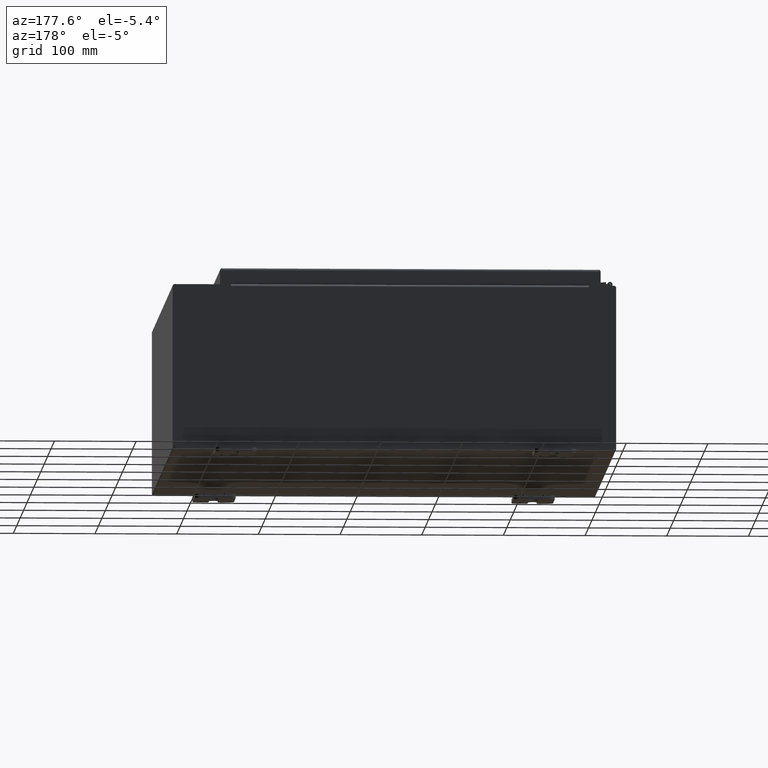
[diagram: clean part render]
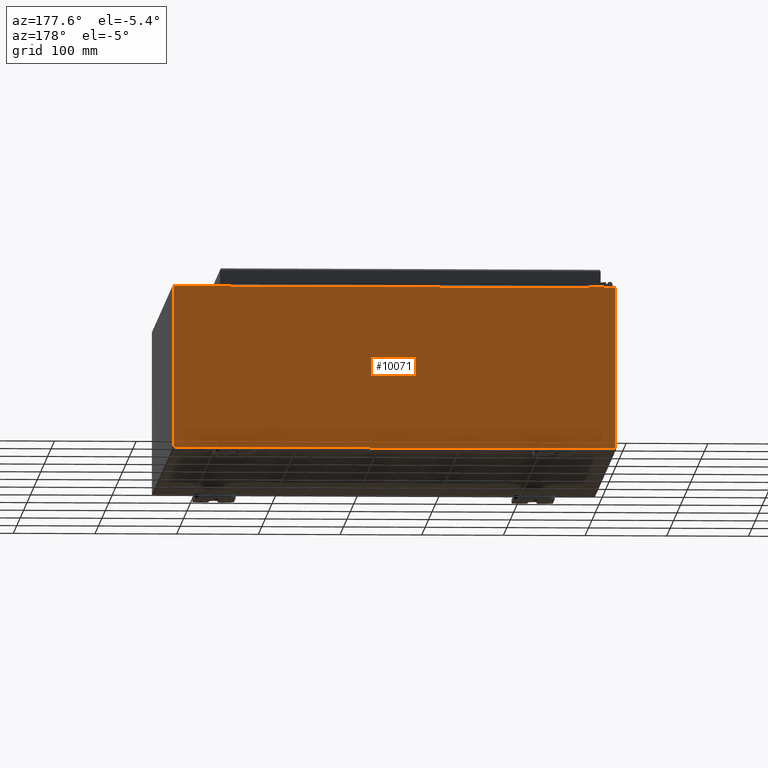
[diagram: same view with one face highlighted and labeled with its STEP entity id]
A machine part, auxiliary view. The second image highlights one B-rep face of the part: STEP entity #10071.
In plain terms, the highlighted planar face has unit normal (0, -1, 0).
Its self-contained STEP definition (entity closure, byte-faithful):
#456=CIRCLE($,#10759,0.07);
#457=CIRCLE($,#10762,0.07);
#1059=FACE_OUTER_BOUND($,#1633,.T.);
#1633=EDGE_LOOP($,(#7197,#7198,#7199,#7200,#7201,#7202,#7203,#7204,#7205,
#7206,#7207,#7208,#7209,#7210));
#2177=LINE($,#14623,#3142);
#2189=LINE($,#14660,#3154);
#2336=LINE($,#14991,#3301);
#2339=LINE($,#14999,#3304);
#2342=LINE($,#15003,#3307);
#2344=LINE($,#15008,#3309);
#2347=LINE($,#15014,#3312);
#2351=LINE($,#15021,#3316);
#2352=LINE($,#15024,#3317);
#2409=LINE($,#15431,#3374);
#2410=LINE($,#15433,#3375);
#2411=LINE($,#15436,#3376);
#3142=VECTOR($,#11818,0.000199999999999981);
#3154=VECTOR($,#11844,0.000199999999999981);
#3301=VECTOR($,#12163,17.253);
#3304=VECTOR($,#12168,0.0314500000000107);
#3307=VECTOR($,#12173,0.00020000000000138);
#3309=VECTOR($,#12177,0.000199999999999981);
#3312=VECTOR($,#12182,0.0314500000000107);
#3316=VECTOR($,#12188,2.7763);
#3317=VECTOR($,#12191,1.2763);
#3374=VECTOR($,#12332,7.79854986440824);
#3375=VECTOR($,#12333,21.1455336786487);
#3376=VECTOR($,#12336,7.79854986440823);
#4154=VERTEX_POINT($,#14620);
#4155=VERTEX_POINT($,#14622);
#4172=VERTEX_POINT($,#14657);
#4173=VERTEX_POINT($,#14659);
#4274=VERTEX_POINT($,#14996);
#4275=VERTEX_POINT($,#14998);
#4277=VERTEX_POINT($,#15007);
#4279=VERTEX_POINT($,#15013);
#4281=VERTEX_POINT($,#15019);
#4282=VERTEX_POINT($,#15023);
#4331=VERTEX_POINT($,#15405);
#4332=VERTEX_POINT($,#15407);
#4335=VERTEX_POINT($,#15432);
#4336=VERTEX_POINT($,#15434);
#5124=EDGE_CURVE($,#4155,#4154,#2177,.T.);
#5142=EDGE_CURVE($,#4173,#4172,#2189,.T.);
#5308=EDGE_CURVE($,#4154,#4173,#2336,.T.);
#5311=EDGE_CURVE($,#4275,#4274,#2339,.T.);
#5314=EDGE_CURVE($,#4172,#4275,#2342,.T.);
#5316=EDGE_CURVE($,#4277,#4155,#2344,.T.);
#5319=EDGE_CURVE($,#4279,#4277,#2347,.T.);
#5323=EDGE_CURVE($,#4281,#4274,#2351,.T.);
#5324=EDGE_CURVE($,#4279,#4282,#2352,.T.);
#5405=EDGE_CURVE($,#4332,#4331,#456,.T.);
#5410=EDGE_CURVE($,#4332,#4281,#2409,.T.);
#5411=EDGE_CURVE($,#4331,#4335,#2410,.T.);
#5412=EDGE_CURVE($,#4335,#4336,#457,.T.);
#5413=EDGE_CURVE($,#4282,#4336,#2411,.T.);
#7197=ORIENTED_EDGE($,*,*,#5311,.T.);
#7198=ORIENTED_EDGE($,*,*,#5323,.F.);
#7199=ORIENTED_EDGE($,*,*,#5410,.F.);
#7200=ORIENTED_EDGE($,*,*,#5405,.T.);
#7201=ORIENTED_EDGE($,*,*,#5411,.T.);
#7202=ORIENTED_EDGE($,*,*,#5412,.T.);
#7203=ORIENTED_EDGE($,*,*,#5413,.F.);
#7204=ORIENTED_EDGE($,*,*,#5324,.F.);
#7205=ORIENTED_EDGE($,*,*,#5319,.T.);
#7206=ORIENTED_EDGE($,*,*,#5316,.T.);
#7207=ORIENTED_EDGE($,*,*,#5124,.T.);
#7208=ORIENTED_EDGE($,*,*,#5308,.T.);
#7209=ORIENTED_EDGE($,*,*,#5142,.T.);
#7210=ORIENTED_EDGE($,*,*,#5314,.T.);
#9200=PLANE($,#10761);
#10071=ADVANCED_FACE($,(#1059),#9200,.F.);
#10759=AXIS2_PLACEMENT_3D($,#15408,#12324,#12325);
#10761=AXIS2_PLACEMENT_3D($,#15430,#12330,#12331);
#10762=AXIS2_PLACEMENT_3D($,#15435,#12334,#12335);
#11818=DIRECTION($,(0.,5.51716923417604E-015,1.));
#11844=DIRECTION($,(0.,-5.51716923417604E-015,-1.));
#12163=DIRECTION($,(1.,6.56012662985289E-016,4.86421899758687E-016));
#12168=DIRECTION($,(0.,5.51716923417604E-015,1.));
#12173=DIRECTION($,(1.,6.56012662985286E-016,0.));
#12177=DIRECTION($,(1.,6.56012662985286E-016,0.));
#12182=DIRECTION($,(0.,-5.51716923417604E-015,-1.));
#12188=DIRECTION($,(-1.,-7.87327125181975E-016,-3.94345225780656E-016));
#12191=DIRECTION($,(-1.,-7.87327125181975E-016,-3.94345225780656E-016));
#12324=DIRECTION('center_axis',(6.56012662985286E-016,-1.,5.51716923417604E-015));
#12325=DIRECTION('ref_axis',(1.,1.30842485758288E-016,-1.30842485758288E-016));
#12330=DIRECTION('center_axis',(6.56012662985286E-016,-1.,5.51716923417604E-015));
#12331=DIRECTION('ref_axis',(1.,0.,0.));
#12332=DIRECTION($,(-7.14905195356542E-031,5.39030285815812E-015,1.));
#12333=DIRECTION($,(-1.,-6.56012662985286E-016,2.83082630732609E-030));
#12334=DIRECTION('center_axis',(6.56012662985286E-016,-1.,5.51716923417604E-015));
#12335=DIRECTION('ref_axis',(1.,1.30842485758288E-016,-1.30842485758288E-016));
#12336=DIRECTION($,(-6.00882843947771E-030,4.55977881293908E-014,-1.));
#14620=CARTESIAN_POINT('',(1.3135,24.,7.89474999999999));
#14622=CARTESIAN_POINT('',(1.3135,24.,7.89454999999999));
#14623=CARTESIAN_POINT($,(1.3135,24.,5.94924153944229));
#14657=CARTESIAN_POINT('',(18.5665,24.,7.89455));
#14659=CARTESIAN_POINT('',(18.5665,24.,7.89475));
#14660=CARTESIAN_POINT($,(18.5665,24.,5.93351653944229));
#14991=CARTESIAN_POINT($,(6.00175,24.,7.89474999999999));
#14996=CARTESIAN_POINT('',(18.5667,24.,7.92600000000001));
#14998=CARTESIAN_POINT('',(18.5667,24.,7.89455));
#14999=CARTESIAN_POINT($,(18.5667,24.,5.9492415394423));
#15003=CARTESIAN_POINT($,(14.62835,24.,7.89455));
#15007=CARTESIAN_POINT('',(1.3133,24.,7.89454999999999));
#15008=CARTESIAN_POINT($,(6.00175,24.,7.89454999999999));
#15013=CARTESIAN_POINT('',(1.3133,24.,7.926));
#15014=CARTESIAN_POINT($,(1.3133,24.,5.93351653944229));
#15019=CARTESIAN_POINT('',(21.343,24.,7.92600000000001));
#15021=CARTESIAN_POINT($,(21.343,24.0000000000001,7.92600000000001));
#15023=CARTESIAN_POINT('',(0.0369999999999944,24.,7.926));
#15024=CARTESIAN_POINT($,(21.343,24.0000000000001,7.92600000000001));
#15405=CARTESIAN_POINT('',(21.2627668393244,24.,0.105249999999998));
#15407=CARTESIAN_POINT('',(21.343,24.,0.127450135591771));
#15408=CARTESIAN_POINT('Origin',(21.3178919211154,24.,0.0621080788845813));
#15430=CARTESIAN_POINT('Origin',(10.69,24.,3.97248307888459));
#15431=CARTESIAN_POINT($,(21.343,24.,0.105250000000007));
#15432=CARTESIAN_POINT('',(0.117233160675633,24.,0.105250000000001));
#15433=CARTESIAN_POINT($,(10.69,24.,0.105250000000004));
#15434=CARTESIAN_POINT('',(0.0369999999999997,24.,0.127450135591771));
#15435=CARTESIAN_POINT('Origin',(0.062108078884576,24.,0.0621080788845785));
#15436=CARTESIAN_POINT($,(0.0369999999999997,24.,-0.0673176844616865));